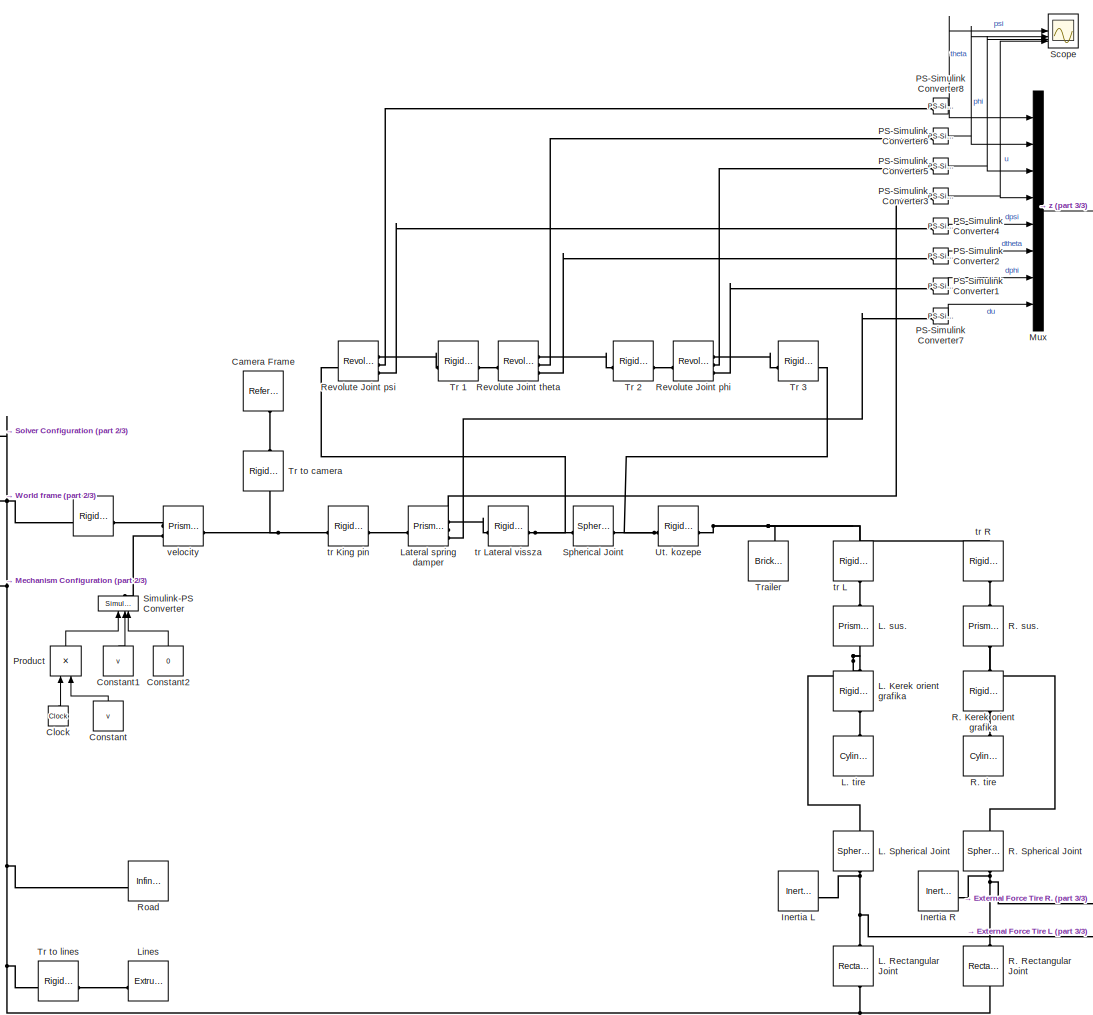
[diagram: root canvas - part 1/3, center side, full height]
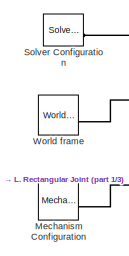
[diagram: root canvas - part 2/3, middle left region]
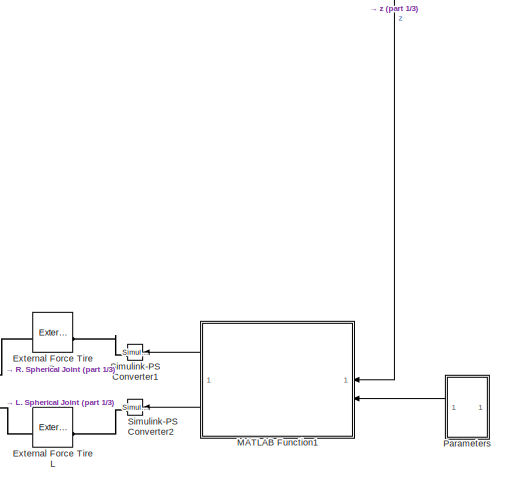
[diagram: root canvas - part 3/3, bottom right region]
MODEL slx_e1cf804bb780
KIND model
CONFIG AbsTol = 1e-3
CONFIG EnableMultiTasking = on
CONFIG FixedStep = auto
CONFIG MaxStep = 0.01
CONFIG MinStep = auto
CONFIG RelTol = 1e-3
CONFIG SampleTimeConstraint = Unconstrained
CONFIG SolverName = ode45
CONFIG StartTime = 0.0
CONFIG StopTime = 100
BLOCK [Reference]    REF=sm_lib/Frames and
Transforms/Rigid
Transform
  SourceBlock = sm_lib/Frames and\nTransforms/Rigid\nTransform
  SourceType = Rigid\nTransform
BLOCK [Reference] Camera Frame  REF=sm_lib/Frames and
Transforms/Reference
Frame
  NameLocation = left
  SourceBlock = sm_lib/Frames and\nTransforms/Reference\nFrame
  SourceType = Reference\nFrame
BLOCK [Clock] Clock
  NameLocation = right
BLOCK [Constant] Constant
  NameLocation = right
  Value = v
BLOCK [Constant] Constant1
  NameLocation = right
  Value = v
BLOCK [Constant] Constant2
  NameLocation = right
  Value = 0
BLOCK [Reference] External Force Tire L  REF=sm_lib/Forces and
Torques/External Force
and Torque
  NameLocation = top
  SourceBlock = sm_lib/Forces and\nTorques/External Force\nand Torque
  SourceType = External Force\nand Torque
BLOCK [Reference] External Force Tire R.  REF=sm_lib/Forces and
Torques/External Force
and Torque
  NameLocation = top
  SourceBlock = sm_lib/Forces and\nTorques/External Force\nand Torque
  SourceType = External Force\nand Torque
BLOCK [Reference] Inertia L  REF=sm_lib/Body Elements/Inertia
  SourceBlock = sm_lib/Body Elements/Inertia
  SourceType = Inertia
BLOCK [Reference] Inertia R  REF=sm_lib/Body Elements/Inertia
  SourceBlock = sm_lib/Body Elements/Inertia
  SourceType = Inertia
BLOCK [Reference] L. Kerek orient grafika  REF=sm_lib/Frames and
Transforms/Rigid
Transform
  NameLocation = left
  SourceBlock = sm_lib/Frames and\nTransforms/Rigid\nTransform
  SourceType = Rigid\nTransform
BLOCK [Reference] L. Rectangular Joint  REF=sm_lib/Joints/Rectangular
Joint
  NameLocation = right
  SourceBlock = sm_lib/Joints/Rectangular\nJoint
  SourceType = Rectangular\nJoint
BLOCK [Reference] L. Spherical Joint  REF=sm_lib/Joints/Spherical
Joint
  NameLocation = right
  SourceBlock = sm_lib/Joints/Spherical\nJoint
  SourceType = Spherical\nJoint
BLOCK [Reference] L. sus.  REF=sm_lib/Joints/Prismatic
Joint
  NameLocation = right
  SourceBlock = sm_lib/Joints/Prismatic\nJoint
  SourceType = Prismatic\nJoint
BLOCK [Reference] L. tire  REF=sm_lib/Body Elements/Cylindrical Solid
  NameLocation = right
  SourceBlock = sm_lib/Body Elements/Cylindrical Solid
  SourceType = Cylindrical Solid
BLOCK [Reference] Lateral spring damper  REF=sm_lib/Joints/Prismatic
Joint
  SourceBlock = sm_lib/Joints/Prismatic\nJoint
  SourceType = Prismatic\nJoint
BLOCK [Reference] Lines  REF=sm_lib/Body Elements/Extruded Solid
  NameLocation = top
  SourceBlock = sm_lib/Body Elements/Extruded Solid
  SourceType = Extruded Solid
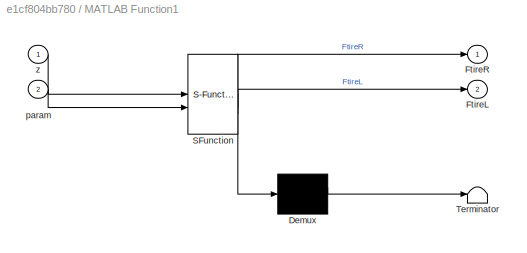
BLOCK [SubSystem] MATLAB Function1
  ErrorFcn = Stateflow.Translate.translate
  NameLocation = top
  PermitHierarchicalResolution = ExplicitOnly
  SFBlockType = MATLAB Function
  TreatAsAtomicUnit = on
BLOCK [Demux] MATLAB Function1/ Demux 
  Outputs = 1
BLOCK [S-Function] MATLAB Function1/ SFunction 
  EnableBusSupport = on
  FunctionName = sf_sfun
  PortCounts = [2 3]
  SFcnIsStateOwnerBlock = off
  SFunctionDeploymentMode = off
  Tag = Stateflow S-Function 1
BLOCK [Terminator] MATLAB Function1/ Terminator 
BLOCK [Outport] MATLAB Function1/FtireL
  Port = 2
BLOCK [Outport] MATLAB Function1/FtireR
BLOCK [Inport] MATLAB Function1/param
  Port = 2
BLOCK [Inport] MATLAB Function1/z
BLOCK [Reference] Mechanism Configuration  REF=sm_lib/Utilities/Mechanism
Configuration
  SourceBlock = sm_lib/Utilities/Mechanism\nConfiguration
  SourceType = Mechanism\nConfiguration
BLOCK [Mux] Mux
  DisplayOption = bar
  Inputs = 8
BLOCK [Reference] PS-Simulink Converter1  REF=nesl_utility/PS-Simulink
Converter
  SourceBlock = nesl_utility/PS-Simulink\nConverter
  SourceType = PS-Simulink\nConverter
BLOCK [Reference] PS-Simulink Converter2  REF=nesl_utility/PS-Simulink
Converter
  SourceBlock = nesl_utility/PS-Simulink\nConverter
  SourceType = PS-Simulink\nConverter
BLOCK [Reference] PS-Simulink Converter3  REF=nesl_utility/PS-Simulink
Converter
  SourceBlock = nesl_utility/PS-Simulink\nConverter
  SourceType = PS-Simulink\nConverter
BLOCK [Reference] PS-Simulink Converter4  REF=nesl_utility/PS-Simulink
Converter
  SourceBlock = nesl_utility/PS-Simulink\nConverter
  SourceType = PS-Simulink\nConverter
BLOCK [Reference] PS-Simulink Converter5  REF=nesl_utility/PS-Simulink
Converter
  SourceBlock = nesl_utility/PS-Simulink\nConverter
  SourceType = PS-Simulink\nConverter
BLOCK [Reference] PS-Simulink Converter6  REF=nesl_utility/PS-Simulink
Converter
  SourceBlock = nesl_utility/PS-Simulink\nConverter
  SourceType = PS-Simulink\nConverter
BLOCK [Reference] PS-Simulink Converter7  REF=nesl_utility/PS-Simulink
Converter
  SourceBlock = nesl_utility/PS-Simulink\nConverter
  SourceType = PS-Simulink\nConverter
BLOCK [Reference] PS-Simulink Converter8  REF=nesl_utility/PS-Simulink
Converter
  SourceBlock = nesl_utility/PS-Simulink\nConverter
  SourceType = PS-Simulink\nConverter
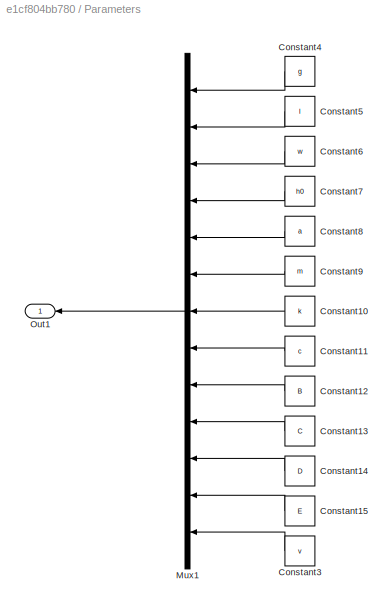
BLOCK [SubSystem] Parameters
  NameLocation = top
BLOCK [Constant] Parameters/Constant10
  NameLocation = top
  Value = k
BLOCK [Constant] Parameters/Constant11
  NameLocation = top
  Value = c
BLOCK [Constant] Parameters/Constant12
  NameLocation = top
  Value = B
BLOCK [Constant] Parameters/Constant13
  NameLocation = top
  Value = C
BLOCK [Constant] Parameters/Constant14
  NameLocation = top
  Value = D
BLOCK [Constant] Parameters/Constant15
  NameLocation = top
  Value = E
BLOCK [Constant] Parameters/Constant3
  NameLocation = top
  Value = v
BLOCK [Constant] Parameters/Constant4
  NameLocation = top
  Value = g
BLOCK [Constant] Parameters/Constant5
  NameLocation = top
  Value = l
BLOCK [Constant] Parameters/Constant6
  NameLocation = top
  Value = w
BLOCK [Constant] Parameters/Constant7
  NameLocation = top
  Value = h0
BLOCK [Constant] Parameters/Constant8
  NameLocation = top
  Value = a
BLOCK [Constant] Parameters/Constant9
  NameLocation = top
  Value = m
BLOCK [Mux] Parameters/Mux1
  DisplayOption = bar
  Inputs = 13
  NameLocation = top
BLOCK [Outport] Parameters/Out1
BLOCK [Product] Product
  NameLocation = right
BLOCK [Reference] R. Kerek orient grafika  REF=sm_lib/Frames and
Transforms/Rigid
Transform
  NameLocation = left
  SourceBlock = sm_lib/Frames and\nTransforms/Rigid\nTransform
  SourceType = Rigid\nTransform
BLOCK [Reference] R. Rectangular Joint  REF=sm_lib/Joints/Rectangular
Joint
  NameLocation = right
  SourceBlock = sm_lib/Joints/Rectangular\nJoint
  SourceType = Rectangular\nJoint
BLOCK [Reference] R. Spherical Joint  REF=sm_lib/Joints/Spherical
Joint
  NameLocation = right
  SourceBlock = sm_lib/Joints/Spherical\nJoint
  SourceType = Spherical\nJoint
BLOCK [Reference] R. sus.  REF=sm_lib/Joints/Prismatic
Joint
  NameLocation = right
  SourceBlock = sm_lib/Joints/Prismatic\nJoint
  SourceType = Prismatic\nJoint
BLOCK [Reference] R. tire  REF=sm_lib/Body Elements/Cylindrical Solid
  NameLocation = right
  SourceBlock = sm_lib/Body Elements/Cylindrical Solid
  SourceType = Cylindrical Solid
BLOCK [Reference] Revolute Joint phi  REF=sm_lib/Joints/Revolute Joint
  SourceBlock = sm_lib/Joints/Revolute Joint
  SourceType = Revolute Joint
BLOCK [Reference] Revolute Joint psi  REF=sm_lib/Joints/Revolute Joint
  SourceBlock = sm_lib/Joints/Revolute Joint
  SourceType = Revolute Joint
BLOCK [Reference] Revolute Joint theta  REF=sm_lib/Joints/Revolute Joint
  SourceBlock = sm_lib/Joints/Revolute Joint
  SourceType = Revolute Joint
BLOCK [Reference] Road  REF=sm_lib/Curves and Surfaces/Infinite Plane
  SourceBlock = sm_lib/Curves and Surfaces/Infinite Plane
  SourceType = Infinite Plane
BLOCK [Scope] Scope
  Floating = off
  NumInputPorts = 4
  ScopeSpecificationString = Simulink.scopes.TimeScopeBlockCfg('CurrentConfiguration', extmgr.ConfigurationSet(extmgr.Configuration('Core','General UI',true,'FigureColor',[1 1 1]),extmgr.Configuration('Core','Source UI',true),extmgr.Configuration('Sources','WiredSimulink',true),extmgr.Configuration('Visuals','Time Domain',true,'TimeAxisLabels','All','PlotType','Line','SerializedDisplays',{struct('MinYLimReal','-0.00342','MaxY...<+4156ch>
BLOCK [Reference] Simulink-PS Converter  REF=nesl_utility/Simulink-PS
Converter
  NameLocation = right
  SourceBlock = nesl_utility/Simulink-PS\nConverter
  SourceType = Simulink-PS\nConverter
BLOCK [Reference] Simulink-PS Converter1  REF=nesl_utility/Simulink-PS
Converter
  NameLocation = top
  SourceBlock = nesl_utility/Simulink-PS\nConverter
  SourceType = Simulink-PS\nConverter
BLOCK [Reference] Simulink-PS Converter2  REF=nesl_utility/Simulink-PS
Converter
  NameLocation = top
  SourceBlock = nesl_utility/Simulink-PS\nConverter
  SourceType = Simulink-PS\nConverter
BLOCK [Reference] Solver Configuration  REF=nesl_utility/Solver
Configuration
  SourceBlock = nesl_utility/Solver\nConfiguration
  SourceType = Solver\nConfiguration
BLOCK [Reference] Spherical Joint  REF=sm_lib/Joints/Spherical
Joint
  SourceBlock = sm_lib/Joints/Spherical\nJoint
  SourceType = Spherical\nJoint
BLOCK [Reference] Tr 1  REF=sm_lib/Frames and
Transforms/Rigid
Transform
  SourceBlock = sm_lib/Frames and\nTransforms/Rigid\nTransform
  SourceType = Rigid\nTransform
BLOCK [Reference] Tr 2  REF=sm_lib/Frames and
Transforms/Rigid
Transform
  SourceBlock = sm_lib/Frames and\nTransforms/Rigid\nTransform
  SourceType = Rigid\nTransform
BLOCK [Reference] Tr 3  REF=sm_lib/Frames and
Transforms/Rigid
Transform
  SourceBlock = sm_lib/Frames and\nTransforms/Rigid\nTransform
  SourceType = Rigid\nTransform
BLOCK [Reference] Tr to camera  REF=sm_lib/Frames and
Transforms/Rigid
Transform
  NameLocation = right
  SourceBlock = sm_lib/Frames and\nTransforms/Rigid\nTransform
  SourceType = Rigid\nTransform
BLOCK [Reference] Tr to lines  REF=sm_lib/Frames and
Transforms/Rigid
Transform
  SourceBlock = sm_lib/Frames and\nTransforms/Rigid\nTransform
  SourceType = Rigid\nTransform
BLOCK [Reference] Trailer  REF=sm_lib/Body Elements/Brick Solid
  SourceBlock = sm_lib/Body Elements/Brick Solid
  SourceType = Brick Solid
BLOCK [Reference] Ut. kozepe  REF=sm_lib/Frames and
Transforms/Rigid
Transform
  SourceBlock = sm_lib/Frames and\nTransforms/Rigid\nTransform
  SourceType = Rigid\nTransform
BLOCK [Reference] World frame  REF=sm_lib/Frames and
Transforms/World Frame
  SourceBlock = sm_lib/Frames and\nTransforms/World Frame
  SourceType = World Frame
BLOCK [Reference] tr King pin  REF=sm_lib/Frames and
Transforms/Rigid
Transform
  SourceBlock = sm_lib/Frames and\nTransforms/Rigid\nTransform
  SourceType = Rigid\nTransform
BLOCK [Reference] tr L  REF=sm_lib/Frames and
Transforms/Rigid
Transform
  NameLocation = left
  SourceBlock = sm_lib/Frames and\nTransforms/Rigid\nTransform
  SourceType = Rigid\nTransform
BLOCK [Reference] tr Lateral vissza  REF=sm_lib/Frames and
Transforms/Rigid
Transform
  SourceBlock = sm_lib/Frames and\nTransforms/Rigid\nTransform
  SourceType = Rigid\nTransform
BLOCK [Reference] tr R  REF=sm_lib/Frames and
Transforms/Rigid
Transform
  NameLocation = left
  SourceBlock = sm_lib/Frames and\nTransforms/Rigid\nTransform
  SourceType = Rigid\nTransform
BLOCK [Reference] velocity  REF=sm_lib/Joints/Prismatic
Joint
  SourceBlock = sm_lib/Joints/Prismatic\nJoint
  SourceType = Prismatic\nJoint
LINE Clock:1 -> Product:1
LINE Constant1:1 -> Simulink-PS Converter:2
LINE Constant2:1 -> Simulink-PS Converter:3
LINE Constant:1 -> Product:2
LINE MATLAB Function1:1 -> Simulink-PS Converter1:1
LINE MATLAB Function1:2 -> Simulink-PS Converter2:1
LINE Mux:1 -> MATLAB Function1:1
LINE PS-Simulink Converter1:1 -> Mux:7
LINE PS-Simulink Converter2:1 -> Mux:6
NET PS-Simulink Converter3:1 -> Mux:4, Scope:4
LINE PS-Simulink Converter4:1 -> Mux:5
NET PS-Simulink Converter5:1 -> Mux:3, Scope:3
NET PS-Simulink Converter6:1 -> Mux:2, Scope:2
LINE PS-Simulink Converter7:1 -> Mux:8
NET PS-Simulink Converter8:1 -> Mux:1, Scope:1
LINE Parameters/Constant10:1 -> Parameters/Mux1:7
LINE Parameters/Constant11:1 -> Parameters/Mux1:8
LINE Parameters/Constant12:1 -> Parameters/Mux1:9
LINE Parameters/Constant13:1 -> Parameters/Mux1:10
LINE Parameters/Constant14:1 -> Parameters/Mux1:11
LINE Parameters/Constant15:1 -> Parameters/Mux1:12
LINE Parameters/Constant3:1 -> Parameters/Mux1:13
LINE Parameters/Constant4:1 -> Parameters/Mux1:1
LINE Parameters/Constant5:1 -> Parameters/Mux1:2
LINE Parameters/Constant6:1 -> Parameters/Mux1:3
LINE Parameters/Constant7:1 -> Parameters/Mux1:4
LINE Parameters/Constant8:1 -> Parameters/Mux1:5
LINE Parameters/Constant9:1 -> Parameters/Mux1:6
LINE Parameters/Mux1:1 -> Parameters/Out1:1
LINE Parameters:1 -> MATLAB Function1:2
LINE Product:1 -> Simulink-PS Converter:1
PNET net1:  :LConn1 -- L. Rectangular Joint:LConn1 -- Mechanism Configuration:RConn1 -- R. Rectangular Joint:LConn1 -- Road:LConn1 -- Solver Configuration:RConn1 -- Tr to lines:LConn1 -- World frame:RConn1
PLINE  :RConn1 -- velocity:LConn1
PLINE Camera Frame:RConn1 -- Tr to camera:RConn1
PLINE External Force Tire L:LConn1 -- Simulink-PS Converter2:RConn1
PNET net2: External Force Tire L:RConn1 -- Inertia L:RConn1 -- L. Rectangular Joint:RConn1 -- L. Spherical Joint:LConn1
PLINE External Force Tire R.:LConn1 -- Simulink-PS Converter1:RConn1
PNET net3: External Force Tire R.:RConn1 -- Inertia R:RConn1 -- R. Rectangular Joint:RConn1 -- R. Spherical Joint:LConn1
PNET net4: L. Kerek orient grafika:LConn1 -- L. Spherical Joint:RConn1 -- L. sus.:LConn1
PLINE L. Kerek orient grafika:RConn1 -- L. tire:RConn1
PLINE L. sus.:RConn1 -- tr L:RConn1
PLINE Lateral spring damper:LConn1 -- tr King pin:RConn1
PLINE Lateral spring damper:RConn1 -- tr Lateral vissza:LConn1
PLINE Lateral spring damper:RConn2 -- PS-Simulink Converter3:LConn1
PLINE Lateral spring damper:RConn3 -- PS-Simulink Converter7:LConn1
PLINE Lines:RConn1 -- Tr to lines:RConn1
PLINE PS-Simulink Converter1:LConn1 -- Revolute Joint phi:RConn3
PLINE PS-Simulink Converter2:LConn1 -- Revolute Joint theta:RConn3
PLINE PS-Simulink Converter4:LConn1 -- Revolute Joint psi:RConn3
PLINE PS-Simulink Converter5:LConn1 -- Revolute Joint phi:RConn2
PLINE PS-Simulink Converter6:LConn1 -- Revolute Joint theta:RConn2
PLINE PS-Simulink Converter8:LConn1 -- Revolute Joint psi:RConn2
PNET net5: R. Kerek orient grafika:LConn1 -- R. Spherical Joint:RConn1 -- R. sus.:LConn1
PLINE R. Kerek orient grafika:RConn1 -- R. tire:RConn1
PLINE R. sus.:RConn1 -- tr R:RConn1
PLINE Revolute Joint phi:LConn1 -- Tr 2:RConn1
PLINE Revolute Joint phi:RConn1 -- Tr 3:LConn1
PNET net6: Revolute Joint psi:LConn1 -- Spherical Joint:LConn1 -- tr Lateral vissza:RConn1
PLINE Revolute Joint psi:RConn1 -- Tr 1:LConn1
PLINE Revolute Joint theta:LConn1 -- Tr 1:RConn1
PLINE Revolute Joint theta:RConn1 -- Tr 2:LConn1
PLINE Simulink-PS Converter:RConn1 -- velocity:LConn2
PNET net7: Spherical Joint:RConn1 -- Tr 3:RConn1 -- Ut. kozepe:LConn1
PNET net8: Tr to camera:LConn1 -- tr King pin:LConn1 -- velocity:RConn1
PNET net9: Trailer:RConn1 -- Ut. kozepe:RConn1 -- tr L:LConn1 -- tr R:LConn1
note: NET lines group one-source signal fan-out (src -> all destinations, sorted); 1:1 wires keep LINE; PNET lines group multi-terminal physical nets as a canonical sorted terminal list (undirected conserving connections); 2-terminal nets keep the pairwise PLINE form
CHART MATLAB Function1 states=1 transitions=1
  STATE_LABEL 'eML_blk_kernel()'
  STATE_LABEL 'SCRIPT:\nfunction [FtireR, FtireL] = trailer_tireforces(z,param)\n\n\t% state variables\n\tpsi = z(1,1);\n\ttheta = z(2,1);\n\tfi = z(3,1);\n\tu = z(4,1);\n\tpsid = z(5,1);\n\tthetad = z(6,1);\n\tfid = z(7,1);\n\tud = z(8,1);\n    \n\t\n\t% parameters  \n\teps = 1e-3;\n\n\tg = param(1); \n    l = param(2);\n    w = param(3);\n    h0 = param(4);\n    a = param(5);\n    m = param(6);\n    k = param(7);\n    c = param(8);\n    B = param(...<+3608ch>'
CHART  states=0 transitions=0
